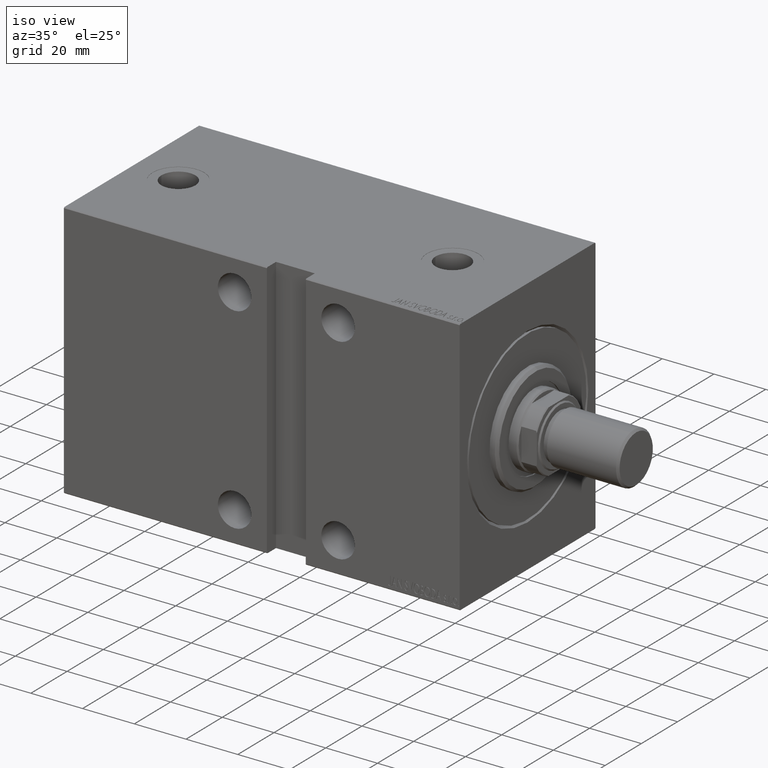
[diagram: clean part render]
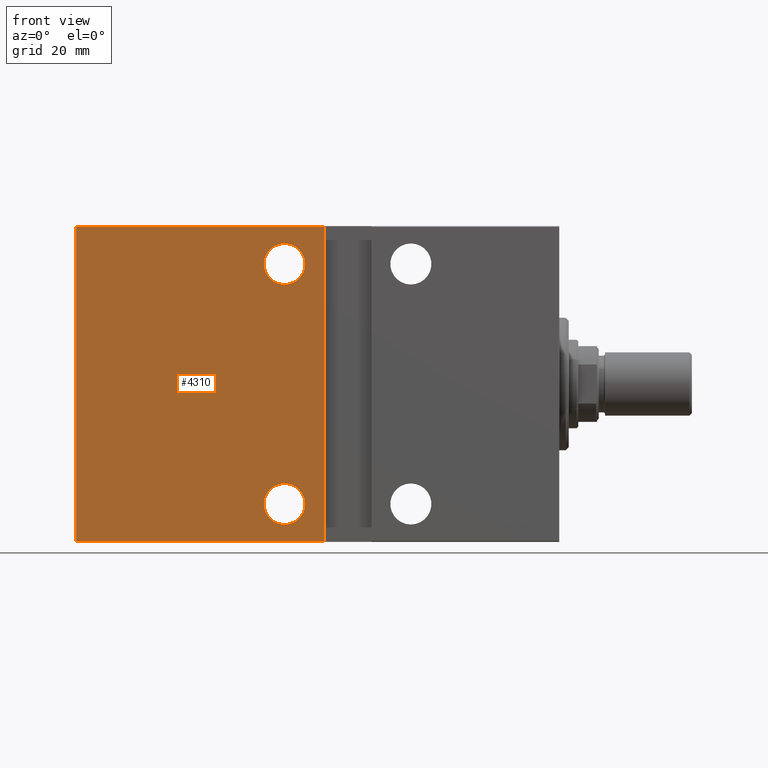
[diagram: tour spotlight — one face highlighted and labeled with its STEP entity id]
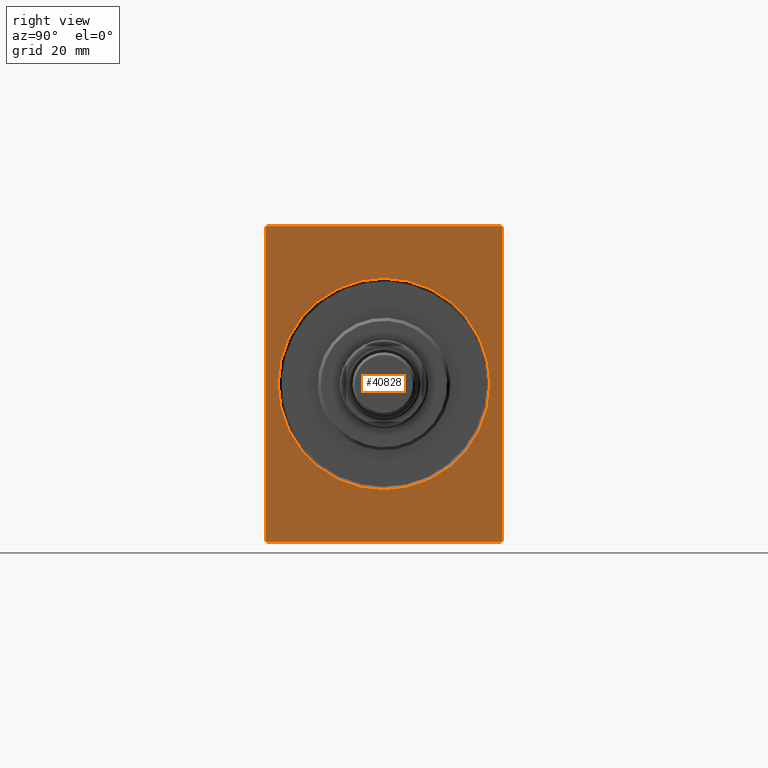
[diagram: tour spotlight — one face highlighted and labeled with its STEP entity id]
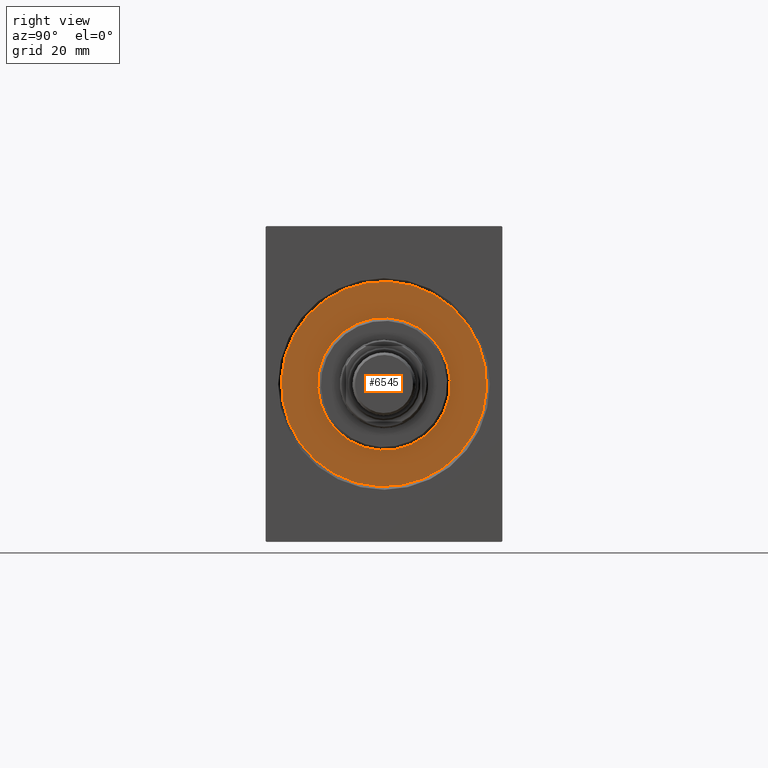
[diagram: tour spotlight — one face highlighted and labeled with its STEP entity id]
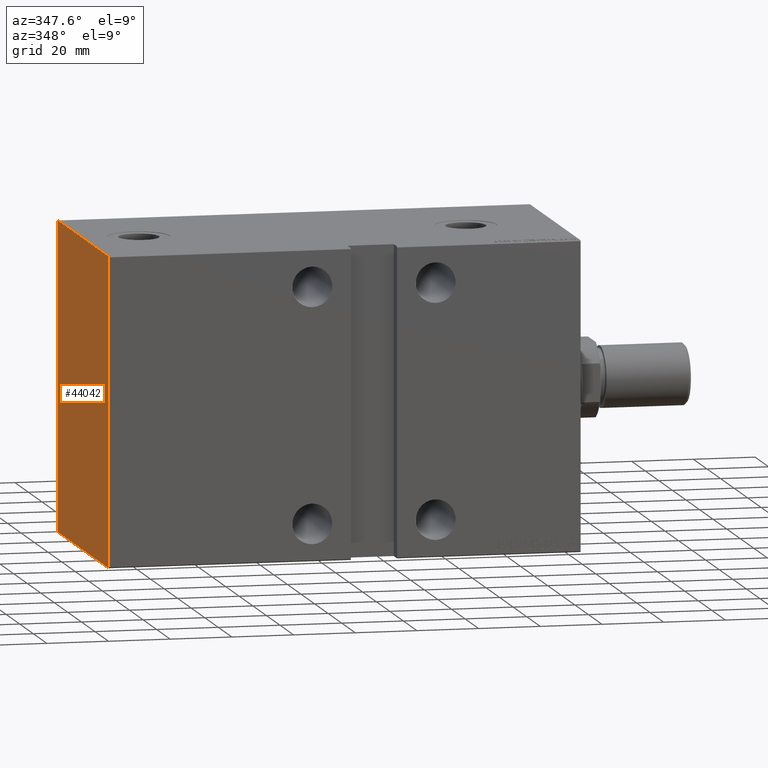
[diagram: tour spotlight — one face highlighted and labeled with its STEP entity id]
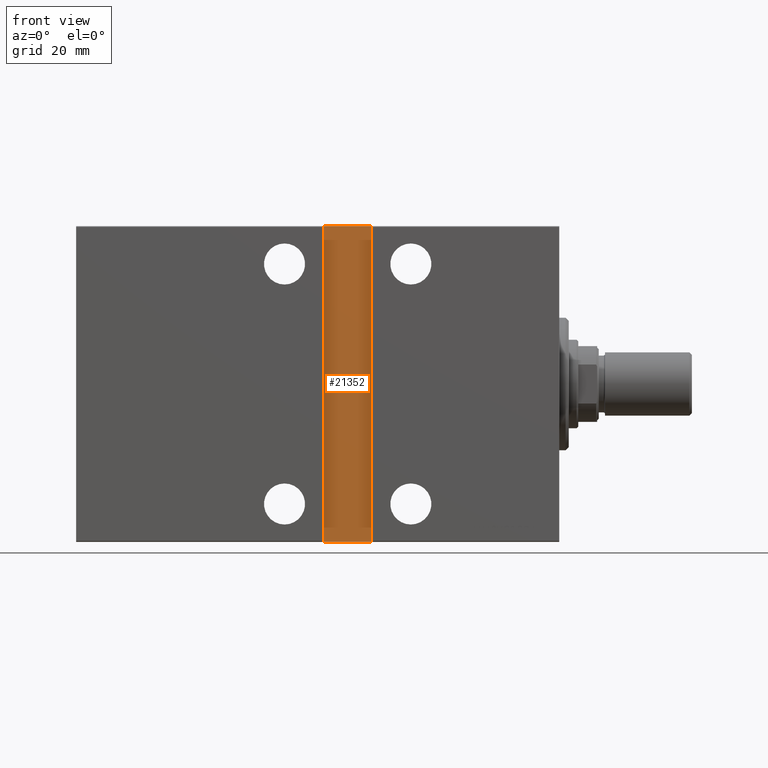
[diagram: tour spotlight — one face highlighted and labeled with its STEP entity id]
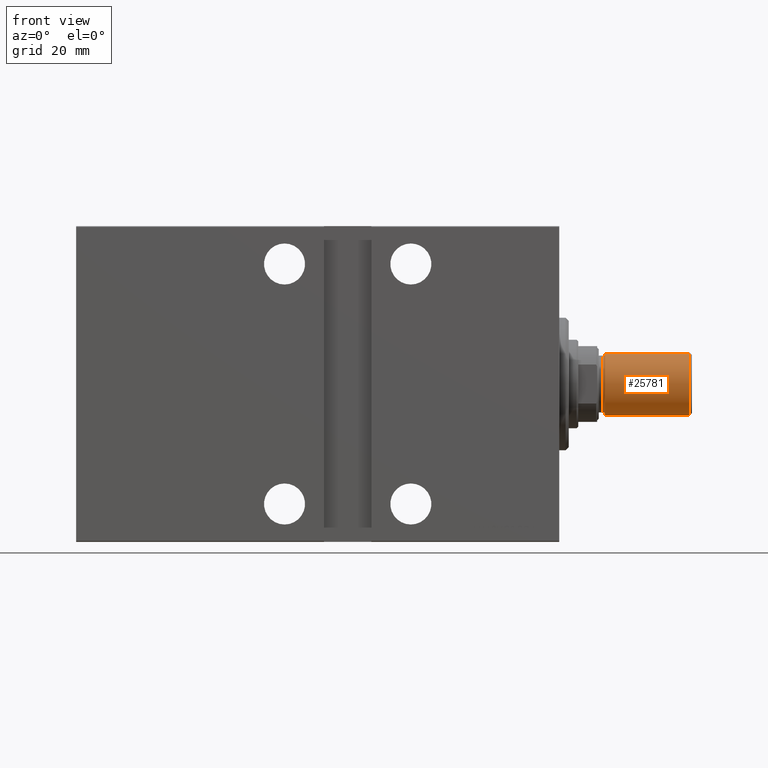
[diagram: tour spotlight — one face highlighted and labeled with its STEP entity id]
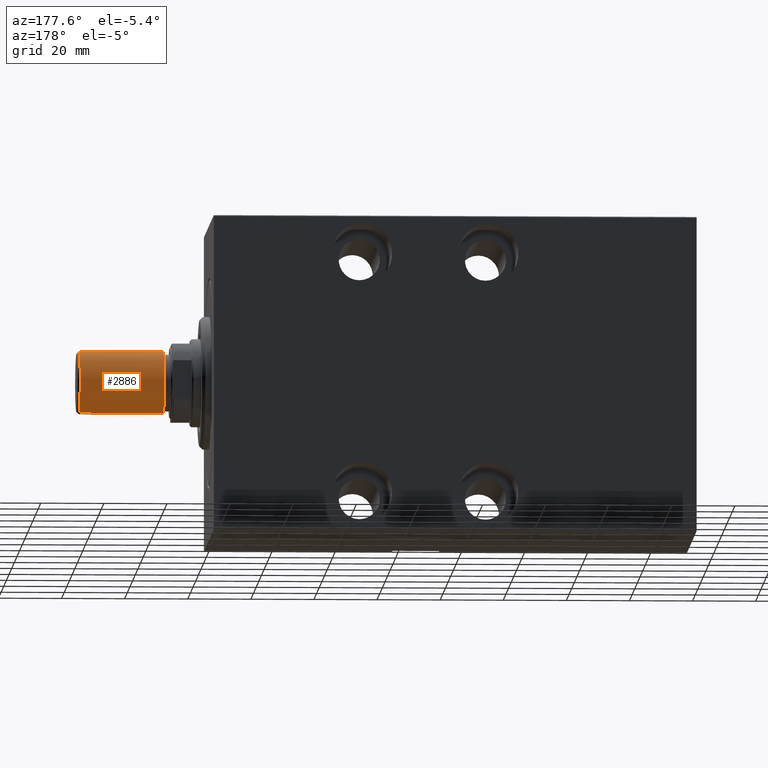
[diagram: tour spotlight — one face highlighted and labeled with its STEP entity id]
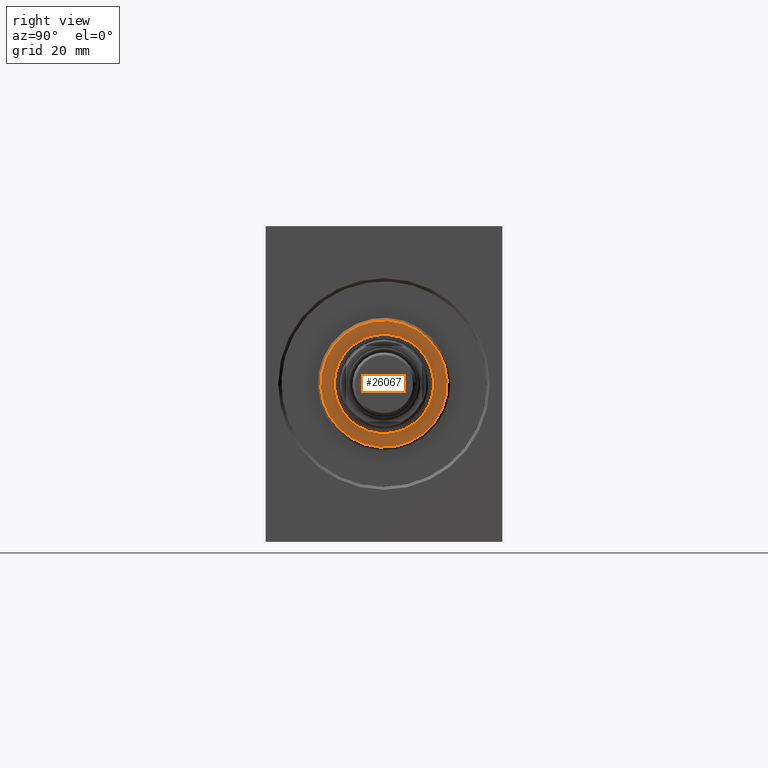
[diagram: tour spotlight — one face highlighted and labeled with its STEP entity id]
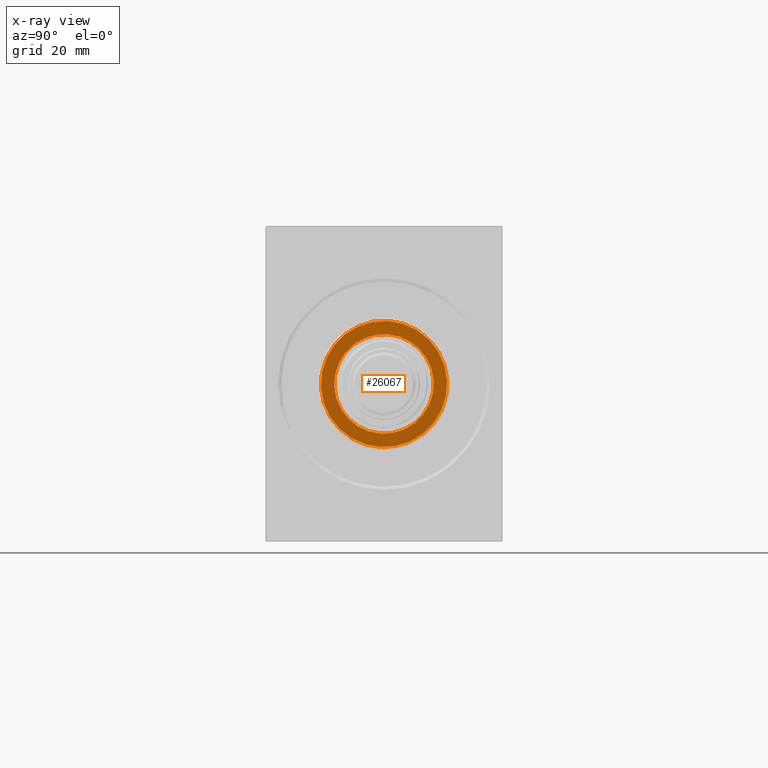
[diagram: x-ray of the same camera — body ghosted, this tour face saturated]
A machine part: a face-by-face anatomy tour. The part has 908 B-rep faces; the first image is the clean iso view, then the 8 largest visible faces are spotlighted one at a time (largest first), each with its STEP entity span.

Face 1 — front view, entity #4310. In plain terms, the highlighted planar face has unit normal (-0, 1, -0).
Definition (entity closure, byte-faithful):
#691 = EDGE_CURVE ( 'NONE', #17377, #16325, #4488, .T. ) ;
#894 = AXIS2_PLACEMENT_3D ( 'NONE', #35437, #18615, #36104 ) ;
#1338 = VECTOR ( 'NONE', #42845, 1000.000000000000000 ) ;
#1899 = CIRCLE ( 'NONE', #19085, 6.500000000000005329 ) ;
#2240 = FACE_BOUND ( 'NONE', #41374, .T. ) ;
#2315 = VECTOR ( 'NONE', #43934, 1000.000000000000000 ) ;
#2344 = AXIS2_PLACEMENT_3D ( 'NONE', #27667, #24299, #23405 ) ;
#4310 = ADVANCED_FACE ( 'NONE', ( #5607, #2240, #43047 ), #19285, .F. ) ;
#4488 = CIRCLE ( 'NONE', #2344, 6.500000000000005329 ) ;
#4959 = LINE ( 'NONE', #8087, #1338 ) ;
#5607 = FACE_BOUND ( 'NONE', #14045, .T. ) ;
#8087 = CARTESIAN_POINT ( 'NONE',  ( 153.0000000000000000, 37.50000000000002132, -49.69999999999998153 ) ) ;
#8532 = CARTESIAN_POINT ( 'NONE',  ( 87.00000000000000000, 37.50000000000004263, 38.00000000000000711 ) ) ;
#8990 = CARTESIAN_POINT ( 'NONE',  ( 87.00000000000000000, 37.50000000000004263, -37.99999999999999289 ) ) ;
#10459 = AXIS2_PLACEMENT_3D ( 'NONE', #8532, #28938, #15478 ) ;
#11300 = ORIENTED_EDGE ( 'NONE', *, *, #31099, .F. ) ;
#13216 = CARTESIAN_POINT ( 'NONE',  ( 153.0000000000000000, 37.50000000000000711, 49.70000000000003837 ) ) ;
#14045 = EDGE_LOOP ( 'NONE', ( #25239, #36959 ) ) ;
#15215 = CARTESIAN_POINT ( 'NONE',  ( 87.00000000000000000, 37.50000000000004263, -31.49999999999998579 ) ) ;
#15336 = CARTESIAN_POINT ( 'NONE',  ( 87.00000000000000000, 37.50000000000004263, 44.50000000000001421 ) ) ;
#15478 = DIRECTION ( 'NONE',  ( 0.000000000000000000, 0.000000000000000000, 1.000000000000000000 ) ) ;
#15718 = VERTEX_POINT ( 'NONE', #25126 ) ;
#16100 = EDGE_CURVE ( 'NONE', #15718, #34473, #34073, .T. ) ;
#16122 = EDGE_CURVE ( 'NONE', #28960, #34473, #20632, .T. ) ;
#16325 = VERTEX_POINT ( 'NONE', #18784 ) ;
#16941 = VECTOR ( 'NONE', #22377, 1000.000000000000000 ) ;
#17377 = VERTEX_POINT ( 'NONE', #15336 ) ;
#18408 = AXIS2_PLACEMENT_3D ( 'NONE', #25472, #36443, #42727 ) ;
#18615 = DIRECTION ( 'NONE',  ( 0.000000000000000000, -1.000000000000000000, -1.387778780781445676E-16 ) ) ;
#18784 = CARTESIAN_POINT ( 'NONE',  ( 87.00000000000000000, 37.50000000000004263, 31.50000000000000000 ) ) ;
#19085 = AXIS2_PLACEMENT_3D ( 'NONE', #8990, #43726, #40145 ) ;
#19285 = PLANE ( 'NONE',  #894 ) ;
#20197 = VERTEX_POINT ( 'NONE', #26917 ) ;
#20632 = LINE ( 'NONE', #30251, #2315 ) ;
#21883 = ORIENTED_EDGE ( 'NONE', *, *, #37525, .T. ) ;
#22377 = DIRECTION ( 'NONE',  ( -1.387778780781445676E-16, 0.000000000000000000, -1.000000000000000000 ) ) ;
#23405 = DIRECTION ( 'NONE',  ( 0.000000000000000000, 0.000000000000000000, 1.000000000000000000 ) ) ;
#24158 = EDGE_CURVE ( 'NONE', #16325, #17377, #37655, .T. ) ;
#24299 = DIRECTION ( 'NONE',  ( 0.000000000000000000, 1.000000000000000000, 0.000000000000000000 ) ) ;
#24498 = EDGE_LOOP ( 'NONE', ( #30056, #21883, #11300, #36584 ) ) ;
#25126 = CARTESIAN_POINT ( 'NONE',  ( 74.50000000000002842, 37.50000000000001421, 49.70000000000003837 ) ) ;
#25239 = ORIENTED_EDGE ( 'NONE', *, *, #31862, .F. ) ;
#25472 = CARTESIAN_POINT ( 'NONE',  ( 87.00000000000000000, 37.50000000000004263, -37.99999999999999289 ) ) ;
#25531 = CARTESIAN_POINT ( 'NONE',  ( 74.50000000000002842, 37.50000000000001421, 50.00000000000000000 ) ) ;
#26917 = CARTESIAN_POINT ( 'NONE',  ( 87.00000000000000000, 37.50000000000004263, -44.50000000000000000 ) ) ;
#27667 = CARTESIAN_POINT ( 'NONE',  ( 87.00000000000000000, 37.50000000000004263, 38.00000000000000711 ) ) ;
#28392 = CARTESIAN_POINT ( 'NONE',  ( 74.50000000000001421, 37.50000000000001421, -49.69999999999998153 ) ) ;
#28579 = EDGE_CURVE ( 'NONE', #20197, #32768, #32015, .T. ) ;
#28938 = DIRECTION ( 'NONE',  ( 0.000000000000000000, 1.000000000000000000, 0.000000000000000000 ) ) ;
#28960 = VERTEX_POINT ( 'NONE', #41265 ) ;
#30037 = DIRECTION ( 'NONE',  ( 1.000000000000000000, 0.000000000000000000, 0.000000000000000000 ) ) ;
#30056 = ORIENTED_EDGE ( 'NONE', *, *, #16122, .F. ) ;
#30251 = CARTESIAN_POINT ( 'NONE',  ( 153.0000000000000000, 37.50000000000002132, -50.00000000000000000 ) ) ;
#31099 = EDGE_CURVE ( 'NONE', #15718, #40153, #32695, .T. ) ;
#31862 = EDGE_CURVE ( 'NONE', #32768, #20197, #1899, .T. ) ;
#32015 = CIRCLE ( 'NONE', #18408, 6.500000000000005329 ) ;
#32550 = ORIENTED_EDGE ( 'NONE', *, *, #691, .F. ) ;
#32695 = LINE ( 'NONE', #25531, #16941 ) ;
#32768 = VERTEX_POINT ( 'NONE', #15215 ) ;
#33097 = VECTOR ( 'NONE', #30037, 1000.000000000000000 ) ;
#34073 = LINE ( 'NONE', #13216, #33097 ) ;
#34473 = VERTEX_POINT ( 'NONE', #34827 ) ;
#34827 = CARTESIAN_POINT ( 'NONE',  ( 153.0000000000000000, 37.50000000000000711, 49.70000000000003837 ) ) ;
#35437 = CARTESIAN_POINT ( 'NONE',  ( 153.0000000000000000, 37.50000000000002132, -50.00000000000000000 ) ) ;
#36104 = DIRECTION ( 'NONE',  ( 0.000000000000000000, 1.387778780781445676E-16, -1.000000000000000000 ) ) ;
#36443 = DIRECTION ( 'NONE',  ( 0.000000000000000000, 1.000000000000000000, 0.000000000000000000 ) ) ;
#36584 = ORIENTED_EDGE ( 'NONE', *, *, #16100, .T. ) ;
#36787 = ORIENTED_EDGE ( 'NONE', *, *, #24158, .F. ) ;
#36959 = ORIENTED_EDGE ( 'NONE', *, *, #28579, .F. ) ;
#37525 = EDGE_CURVE ( 'NONE', #28960, #40153, #4959, .T. ) ;
#37655 = CIRCLE ( 'NONE', #10459, 6.500000000000005329 ) ;
#40145 = DIRECTION ( 'NONE',  ( 0.000000000000000000, 0.000000000000000000, 1.000000000000000000 ) ) ;
#40153 = VERTEX_POINT ( 'NONE', #28392 ) ;
#41265 = CARTESIAN_POINT ( 'NONE',  ( 153.0000000000000000, 37.50000000000002132, -49.69999999999998153 ) ) ;
#41374 = EDGE_LOOP ( 'NONE', ( #32550, #36787 ) ) ;
#42727 = DIRECTION ( 'NONE',  ( 0.000000000000000000, 0.000000000000000000, 1.000000000000000000 ) ) ;
#42845 = DIRECTION ( 'NONE',  ( -1.000000000000000000, 0.000000000000000000, 0.000000000000000000 ) ) ;
#43047 = FACE_OUTER_BOUND ( 'NONE', #24498, .T. ) ;
#43726 = DIRECTION ( 'NONE',  ( 0.000000000000000000, 1.000000000000000000, 0.000000000000000000 ) ) ;
#43934 = DIRECTION ( 'NONE',  ( 0.000000000000000000, -1.387778780781445676E-16, 1.000000000000000000 ) ) ;

Face 2 — right view, entity #40828. In plain terms, the highlighted planar face has unit normal (-1, -0, 0).
Definition (entity closure, byte-faithful):
#567 = DIRECTION ( 'NONE',  ( 1.000000000000000000, 0.000000000000000000, 0.000000000000000000 ) ) ;
#573 = DIRECTION ( 'NONE',  ( 0.000000000000000000, -0.7071067811865474617, -0.7071067811865474617 ) ) ;
#1000 = VECTOR ( 'NONE', #33949, 1000.000000000000000 ) ;
#3169 = VERTEX_POINT ( 'NONE', #9233 ) ;
#3211 = VERTEX_POINT ( 'NONE', #23581 ) ;
#4368 = CARTESIAN_POINT ( 'NONE',  ( 0.000000000000000000, 0.000000000000000000, 0.000000000000000000 ) ) ;
#4693 = ORIENTED_EDGE ( 'NONE', *, *, #17292, .T. ) ;
#5036 = EDGE_CURVE ( 'NONE', #44056, #29942, #33124, .T. ) ;
#5929 = AXIS2_PLACEMENT_3D ( 'NONE', #4368, #567, #40934 ) ;
#6331 = DIRECTION ( 'NONE',  ( 0.000000000000000000, 0.000000000000000000, -1.000000000000000000 ) ) ;
#6409 = VERTEX_POINT ( 'NONE', #7742 ) ;
#6434 = AXIS2_PLACEMENT_3D ( 'NONE', #30496, #44172, #27360 ) ;
#6450 = ORIENTED_EDGE ( 'NONE', *, *, #43239, .F. ) ;
#7367 = CARTESIAN_POINT ( 'NONE',  ( 0.000000000000000000, -37.19999999999996732, 50.00000000000000000 ) ) ;
#7742 = CARTESIAN_POINT ( 'NONE',  ( 0.000000000000000000, 37.50000000000002132, -49.69999999999998153 ) ) ;
#8025 = LINE ( 'NONE', #18349, #22568 ) ;
#8481 = DIRECTION ( 'NONE',  ( -0.000000000000000000, 0.7071067811865474617, 0.7071067811865474617 ) ) ;
#9233 = CARTESIAN_POINT ( 'NONE',  ( 0.000000000000000000, -37.49999999999999289, 49.69999999999998153 ) ) ;
#9262 = VERTEX_POINT ( 'NONE', #37418 ) ;
#10451 = EDGE_CURVE ( 'NONE', #3169, #13291, #8025, .T. ) ;
#10879 = LINE ( 'NONE', #37799, #13100 ) ;
#11059 = CARTESIAN_POINT ( 'NONE',  ( 0.000000000000000000, 37.50000000000002132, -50.00000000000000000 ) ) ;
#13100 = VECTOR ( 'NONE', #573, 1000.000000000000114 ) ;
#13291 = VERTEX_POINT ( 'NONE', #7367 ) ;
#13705 = CARTESIAN_POINT ( 'NONE',  ( 0.000000000000000000, -37.49999999999999289, 50.00000000000000000 ) ) ;
#14138 = VECTOR ( 'NONE', #35307, 1000.000000000000114 ) ;
#15271 = VECTOR ( 'NONE', #26113, 999.9999999999998863 ) ;
#15805 = VERTEX_POINT ( 'NONE', #28496 ) ;
#16220 = ORIENTED_EDGE ( 'NONE', *, *, #16518, .T. ) ;
#16397 = EDGE_CURVE ( 'NONE', #9262, #13291, #40750, .T. ) ;
#16518 = EDGE_CURVE ( 'NONE', #29942, #44056, #38173, .T. ) ;
#16540 = VERTEX_POINT ( 'NONE', #38444 ) ;
#16812 = FACE_OUTER_BOUND ( 'NONE', #31013, .T. ) ;
#17292 = EDGE_CURVE ( 'NONE', #6409, #3211, #10879, .T. ) ;
#18130 = CARTESIAN_POINT ( 'NONE',  ( 0.000000000000000000, 37.50000000000000711, 49.70000000000003837 ) ) ;
#18215 = EDGE_CURVE ( 'NONE', #9262, #20376, #25673, .T. ) ;
#18349 = CARTESIAN_POINT ( 'NONE',  ( 0.000000000000000000, -37.49999999999999289, 49.69999999999998153 ) ) ;
#19052 = EDGE_CURVE ( 'NONE', #6409, #20376, #37762, .T. ) ;
#19306 = ORIENTED_EDGE ( 'NONE', *, *, #5036, .T. ) ;
#20236 = CARTESIAN_POINT ( 'NONE',  ( 0.000000000000000000, 0.000000000000000000, 0.000000000000000000 ) ) ;
#20376 = VERTEX_POINT ( 'NONE', #18130 ) ;
#20439 = LINE ( 'NONE', #13705, #29392 ) ;
#22077 = CARTESIAN_POINT ( 'NONE',  ( 0.000000000000000000, -37.19999999999996732, -50.00000000000000000 ) ) ;
#22224 = LINE ( 'NONE', #29176, #23410 ) ;
#22568 = VECTOR ( 'NONE', #8481, 1000.000000000000114 ) ;
#23410 = VECTOR ( 'NONE', #35891, 1000.000000000000000 ) ;
#23581 = CARTESIAN_POINT ( 'NONE',  ( 0.000000000000000000, 37.19999999999999574, -50.00000000000000000 ) ) ;
#24120 = ORIENTED_EDGE ( 'NONE', *, *, #18215, .T. ) ;
#24575 = VECTOR ( 'NONE', #36936, 1000.000000000000000 ) ;
#25288 = AXIS2_PLACEMENT_3D ( 'NONE', #20236, #33901, #6331 ) ;
#25673 = LINE ( 'NONE', #35972, #15271 ) ;
#25886 = LINE ( 'NONE', #22077, #14138 ) ;
#26113 = DIRECTION ( 'NONE',  ( -0.000000000000000000, 0.7071067811865802133, -0.7071067811865149322 ) ) ;
#26279 = ORIENTED_EDGE ( 'NONE', *, *, #10451, .T. ) ;
#26490 = DIRECTION ( 'NONE',  ( 0.000000000000000000, 0.000000000000000000, -1.000000000000000000 ) ) ;
#27076 = CARTESIAN_POINT ( 'NONE',  ( 0.000000000000000000, 37.50000000000000711, 50.00000000000000000 ) ) ;
#27360 = DIRECTION ( 'NONE',  ( 0.000000000000000000, 0.000000000000000000, -1.000000000000000000 ) ) ;
#28496 = CARTESIAN_POINT ( 'NONE',  ( 0.000000000000000000, -37.49999999999999289, -49.69999999999998153 ) ) ;
#29176 = CARTESIAN_POINT ( 'NONE',  ( 0.000000000000000000, -37.49999999999999289, -50.00000000000000000 ) ) ;
#29392 = VECTOR ( 'NONE', #26490, 1000.000000000000000 ) ;
#29942 = VERTEX_POINT ( 'NONE', #43324 ) ;
#30496 = CARTESIAN_POINT ( 'NONE',  ( 0.000000000000000000, 0.000000000000000000, 0.000000000000000000 ) ) ;
#31013 = EDGE_LOOP ( 'NONE', ( #38337, #24120, #36131, #4693, #41635, #34273, #6450, #26279 ) ) ;
#31970 = EDGE_CURVE ( 'NONE', #16540, #3211, #22224, .T. ) ;
#33124 = CIRCLE ( 'NONE', #25288, 33.50000000000000000 ) ;
#33901 = DIRECTION ( 'NONE',  ( 1.000000000000000000, 0.000000000000000000, 0.000000000000000000 ) ) ;
#33949 = DIRECTION ( 'NONE',  ( 0.000000000000000000, -1.387778780781445676E-16, 1.000000000000000000 ) ) ;
#34260 = EDGE_CURVE ( 'NONE', #16540, #15805, #25886, .T. ) ;
#34273 = ORIENTED_EDGE ( 'NONE', *, *, #34260, .T. ) ;
#35307 = DIRECTION ( 'NONE',  ( -0.000000000000000000, -0.7071067811865474617, 0.7071067811865474617 ) ) ;
#35891 = DIRECTION ( 'NONE',  ( 0.000000000000000000, 1.000000000000000000, 0.000000000000000000 ) ) ;
#35972 = CARTESIAN_POINT ( 'NONE',  ( 0.000000000000000000, 37.20000000000000995, 50.00000000000000000 ) ) ;
#36131 = ORIENTED_EDGE ( 'NONE', *, *, #19052, .F. ) ;
#36921 = CARTESIAN_POINT ( 'NONE',  ( 0.000000000000000000, 0.000000000000000000, 33.50000000000000000 ) ) ;
#36936 = DIRECTION ( 'NONE',  ( 0.000000000000000000, -1.000000000000000000, 0.000000000000000000 ) ) ;
#37418 = CARTESIAN_POINT ( 'NONE',  ( 0.000000000000000000, 37.20000000000000995, 50.00000000000000000 ) ) ;
#37762 = LINE ( 'NONE', #11059, #1000 ) ;
#37799 = CARTESIAN_POINT ( 'NONE',  ( 0.000000000000000000, 37.50000000000002132, -49.69999999999998153 ) ) ;
#38173 = CIRCLE ( 'NONE', #5929, 33.50000000000000000 ) ;
#38337 = ORIENTED_EDGE ( 'NONE', *, *, #16397, .F. ) ;
#38444 = CARTESIAN_POINT ( 'NONE',  ( 0.000000000000000000, -37.19999999999996732, -50.00000000000000000 ) ) ;
#39195 = EDGE_LOOP ( 'NONE', ( #19306, #16220 ) ) ;
#40588 = FACE_BOUND ( 'NONE', #39195, .T. ) ;
#40750 = LINE ( 'NONE', #27076, #24575 ) ;
#40828 = ADVANCED_FACE ( 'NONE', ( #40588, #16812 ), #41847, .F. ) ;
#40934 = DIRECTION ( 'NONE',  ( 0.000000000000000000, 0.000000000000000000, -1.000000000000000000 ) ) ;
#41635 = ORIENTED_EDGE ( 'NONE', *, *, #31970, .F. ) ;
#41847 = PLANE ( 'NONE',  #6434 ) ;
#43239 = EDGE_CURVE ( 'NONE', #3169, #15805, #20439, .T. ) ;
#43324 = CARTESIAN_POINT ( 'NONE',  ( 0.000000000000000000, 4.102566777143633774E-15, -33.50000000000000000 ) ) ;
#44056 = VERTEX_POINT ( 'NONE', #36921 ) ;
#44172 = DIRECTION ( 'NONE',  ( 1.000000000000000000, 0.000000000000000000, 0.000000000000000000 ) ) ;

Face 3 — right view, entity #6545. In plain terms, the highlighted planar face has unit normal (-1, 0, 0).
Definition (entity closure, byte-faithful):
#690 = PLANE ( 'NONE',  #23175 ) ;
#1193 = DIRECTION ( 'NONE',  ( 0.000000000000000000, 0.000000000000000000, 1.000000000000000000 ) ) ;
#1261 = DIRECTION ( 'NONE',  ( 1.000000000000000000, -0.000000000000000000, 0.000000000000000000 ) ) ;
#3099 = ORIENTED_EDGE ( 'NONE', *, *, #27521, .F. ) ;
#3915 = DIRECTION ( 'NONE',  ( -1.000000000000000000, 0.000000000000000000, 0.000000000000000000 ) ) ;
#3981 = DIRECTION ( 'NONE',  ( 0.000000000000000000, 0.000000000000000000, -1.000000000000000000 ) ) ;
#4529 = ORIENTED_EDGE ( 'NONE', *, *, #9642, .F. ) ;
#5014 = VERTEX_POINT ( 'NONE', #13278 ) ;
#6239 = VERTEX_POINT ( 'NONE', #20332 ) ;
#6545 = ADVANCED_FACE ( 'NONE', ( #21108, #21322 ), #690, .F. ) ;
#7264 = DIRECTION ( 'NONE',  ( 0.000000000000000000, 0.000000000000000000, -1.000000000000000000 ) ) ;
#7345 = CIRCLE ( 'NONE', #13064, 21.00000000000000000 ) ;
#7630 = AXIS2_PLACEMENT_3D ( 'NONE', #17140, #3915, #13557 ) ;
#9642 = EDGE_CURVE ( 'NONE', #5014, #39108, #29674, .T. ) ;
#11222 = CARTESIAN_POINT ( 'NONE',  ( 0.000000000000000000, 0.000000000000000000, 0.000000000000000000 ) ) ;
#11570 = CARTESIAN_POINT ( 'NONE',  ( 0.000000000000000000, 0.000000000000000000, 0.000000000000000000 ) ) ;
#12886 = ORIENTED_EDGE ( 'NONE', *, *, #41968, .F. ) ;
#13064 = AXIS2_PLACEMENT_3D ( 'NONE', #41134, #33950, #7264 ) ;
#13278 = CARTESIAN_POINT ( 'NONE',  ( 0.000000000000000000, 3.980102097228898626E-15, 32.50000000000000000 ) ) ;
#13557 = DIRECTION ( 'NONE',  ( 0.000000000000000000, 0.000000000000000000, 1.000000000000000000 ) ) ;
#14377 = AXIS2_PLACEMENT_3D ( 'NONE', #11570, #1261, #3981 ) ;
#15360 = AXIS2_PLACEMENT_3D ( 'NONE', #35492, #28992, #1193 ) ;
#15412 = EDGE_CURVE ( 'NONE', #6239, #16880, #7345, .T. ) ;
#16880 = VERTEX_POINT ( 'NONE', #44356 ) ;
#17140 = CARTESIAN_POINT ( 'NONE',  ( 0.000000000000000000, 0.000000000000000000, 0.000000000000000000 ) ) ;
#19367 = CIRCLE ( 'NONE', #14377, 21.00000000000000000 ) ;
#19799 = CIRCLE ( 'NONE', #7630, 32.50000000000000000 ) ;
#20332 = CARTESIAN_POINT ( 'NONE',  ( 0.000000000000000000, 0.000000000000000000, 21.00000000000000000 ) ) ;
#21108 = FACE_BOUND ( 'NONE', #34101, .T. ) ;
#21322 = FACE_OUTER_BOUND ( 'NONE', #36221, .T. ) ;
#23175 = AXIS2_PLACEMENT_3D ( 'NONE', #11222, #24260, #35428 ) ;
#24260 = DIRECTION ( 'NONE',  ( -1.000000000000000000, 0.000000000000000000, 0.000000000000000000 ) ) ;
#27521 = EDGE_CURVE ( 'NONE', #39108, #5014, #19799, .T. ) ;
#28992 = DIRECTION ( 'NONE',  ( -1.000000000000000000, 0.000000000000000000, 0.000000000000000000 ) ) ;
#29674 = CIRCLE ( 'NONE', #15360, 32.50000000000000000 ) ;
#32632 = CARTESIAN_POINT ( 'NONE',  ( 0.000000000000000000, 0.000000000000000000, -32.50000000000000000 ) ) ;
#33950 = DIRECTION ( 'NONE',  ( 1.000000000000000000, -0.000000000000000000, 0.000000000000000000 ) ) ;
#34101 = EDGE_LOOP ( 'NONE', ( #43459, #12886 ) ) ;
#35428 = DIRECTION ( 'NONE',  ( 0.000000000000000000, 0.000000000000000000, 1.000000000000000000 ) ) ;
#35492 = CARTESIAN_POINT ( 'NONE',  ( 0.000000000000000000, 0.000000000000000000, 0.000000000000000000 ) ) ;
#36221 = EDGE_LOOP ( 'NONE', ( #3099, #4529 ) ) ;
#39108 = VERTEX_POINT ( 'NONE', #32632 ) ;
#41134 = CARTESIAN_POINT ( 'NONE',  ( 0.000000000000000000, 0.000000000000000000, 0.000000000000000000 ) ) ;
#41968 = EDGE_CURVE ( 'NONE', #16880, #6239, #19367, .T. ) ;
#43459 = ORIENTED_EDGE ( 'NONE', *, *, #15412, .F. ) ;
#44356 = CARTESIAN_POINT ( 'NONE',  ( 0.000000000000000000, 2.571758278209441661E-15, -21.00000000000000000 ) ) ;

Face 4 — auxiliary view, entity #44042. In plain terms, the highlighted planar face has unit normal (-1, -0, 0).
Definition (entity closure, byte-faithful):
#1028 = ORIENTED_EDGE ( 'NONE', *, *, #36885, .T. ) ;
#1132 = CARTESIAN_POINT ( 'NONE',  ( 153.0000000000000000, -37.49999999999999289, -49.69999999999998153 ) ) ;
#1642 = VECTOR ( 'NONE', #29299, 1000.000000000000000 ) ;
#2146 = VECTOR ( 'NONE', #28997, 1000.000000000000000 ) ;
#2315 = VECTOR ( 'NONE', #43934, 1000.000000000000000 ) ;
#3138 = DIRECTION ( 'NONE',  ( 0.000000000000000000, -0.7071067811865474617, -0.7071067811865474617 ) ) ;
#4745 = ORIENTED_EDGE ( 'NONE', *, *, #16122, .T. ) ;
#6389 = DIRECTION ( 'NONE',  ( -0.000000000000000000, 0.7071067811865474617, 0.7071067811865474617 ) ) ;
#7051 = VECTOR ( 'NONE', #27630, 999.9999999999998863 ) ;
#7741 = LINE ( 'NONE', #42042, #42376 ) ;
#8674 = AXIS2_PLACEMENT_3D ( 'NONE', #19000, #32673, #40278 ) ;
#9120 = PLANE ( 'NONE',  #8674 ) ;
#10365 = VECTOR ( 'NONE', #6389, 1000.000000000000114 ) ;
#10756 = LINE ( 'NONE', #34082, #42144 ) ;
#11322 = DIRECTION ( 'NONE',  ( 0.000000000000000000, -1.000000000000000000, 0.000000000000000000 ) ) ;
#13074 = ORIENTED_EDGE ( 'NONE', *, *, #39593, .T. ) ;
#13381 = CARTESIAN_POINT ( 'NONE',  ( 153.0000000000000000, -37.19999999999996732, -50.00000000000000000 ) ) ;
#14461 = EDGE_CURVE ( 'NONE', #17766, #28678, #7741, .T. ) ;
#15313 = CARTESIAN_POINT ( 'NONE',  ( 153.0000000000000000, -37.49999999999999289, 50.00000000000000000 ) ) ;
#16122 = EDGE_CURVE ( 'NONE', #28960, #34473, #20632, .T. ) ;
#17093 = EDGE_CURVE ( 'NONE', #41750, #19757, #18754, .T. ) ;
#17766 = VERTEX_POINT ( 'NONE', #21792 ) ;
#17971 = VERTEX_POINT ( 'NONE', #25501 ) ;
#18754 = LINE ( 'NONE', #25932, #1642 ) ;
#19000 = CARTESIAN_POINT ( 'NONE',  ( 153.0000000000000000, 0.000000000000000000, 0.000000000000000000 ) ) ;
#19757 = VERTEX_POINT ( 'NONE', #26184 ) ;
#20347 = ORIENTED_EDGE ( 'NONE', *, *, #17093, .T. ) ;
#20593 = ORIENTED_EDGE ( 'NONE', *, *, #35841, .T. ) ;
#20632 = LINE ( 'NONE', #30251, #2315 ) ;
#20798 = ORIENTED_EDGE ( 'NONE', *, *, #40556, .T. ) ;
#20889 = EDGE_CURVE ( 'NONE', #19757, #28960, #27479, .T. ) ;
#21449 = VECTOR ( 'NONE', #37878, 1000.000000000000114 ) ;
#21792 = CARTESIAN_POINT ( 'NONE',  ( 153.0000000000000000, 37.20000000000000995, 50.00000000000000000 ) ) ;
#22397 = ORIENTED_EDGE ( 'NONE', *, *, #20889, .T. ) ;
#24265 = CARTESIAN_POINT ( 'NONE',  ( 153.0000000000000000, 43.59999999999828901, 43.60000000000231779 ) ) ;
#24863 = CARTESIAN_POINT ( 'NONE',  ( 153.0000000000000000, -43.59999999999998721, -43.59999999999998721 ) ) ;
#25501 = CARTESIAN_POINT ( 'NONE',  ( 153.0000000000000000, -37.49999999999999289, 49.69999999999998153 ) ) ;
#25932 = CARTESIAN_POINT ( 'NONE',  ( 153.0000000000000000, -37.49999999999999289, -50.00000000000000000 ) ) ;
#26184 = CARTESIAN_POINT ( 'NONE',  ( 153.0000000000000000, 37.19999999999999574, -50.00000000000000000 ) ) ;
#27089 = EDGE_LOOP ( 'NONE', ( #20347, #22397, #4745, #20593, #37843, #1028, #20798, #13074 ) ) ;
#27096 = VERTEX_POINT ( 'NONE', #1132 ) ;
#27183 = LINE ( 'NONE', #24265, #7051 ) ;
#27479 = LINE ( 'NONE', #44057, #10365 ) ;
#27630 = DIRECTION ( 'NONE',  ( -0.000000000000000000, -0.7071067811865802133, 0.7071067811865149322 ) ) ;
#28678 = VERTEX_POINT ( 'NONE', #36887 ) ;
#28960 = VERTEX_POINT ( 'NONE', #41265 ) ;
#28997 = DIRECTION ( 'NONE',  ( 0.000000000000000000, 0.000000000000000000, -1.000000000000000000 ) ) ;
#29299 = DIRECTION ( 'NONE',  ( 0.000000000000000000, 1.000000000000000000, 0.000000000000000000 ) ) ;
#29752 = FACE_OUTER_BOUND ( 'NONE', #27089, .T. ) ;
#30251 = CARTESIAN_POINT ( 'NONE',  ( 153.0000000000000000, 37.50000000000002132, -50.00000000000000000 ) ) ;
#32353 = LINE ( 'NONE', #15313, #2146 ) ;
#32673 = DIRECTION ( 'NONE',  ( 1.000000000000000000, 0.000000000000000000, 0.000000000000000000 ) ) ;
#34082 = CARTESIAN_POINT ( 'NONE',  ( 153.0000000000000000, -43.59999999999998721, 43.59999999999998721 ) ) ;
#34303 = LINE ( 'NONE', #24863, #21449 ) ;
#34473 = VERTEX_POINT ( 'NONE', #34827 ) ;
#34827 = CARTESIAN_POINT ( 'NONE',  ( 153.0000000000000000, 37.50000000000000711, 49.70000000000003837 ) ) ;
#35841 = EDGE_CURVE ( 'NONE', #34473, #17766, #27183, .T. ) ;
#36885 = EDGE_CURVE ( 'NONE', #28678, #17971, #10756, .T. ) ;
#36887 = CARTESIAN_POINT ( 'NONE',  ( 153.0000000000000000, -37.19999999999996732, 50.00000000000000000 ) ) ;
#37843 = ORIENTED_EDGE ( 'NONE', *, *, #14461, .T. ) ;
#37878 = DIRECTION ( 'NONE',  ( -0.000000000000000000, 0.7071067811865474617, -0.7071067811865474617 ) ) ;
#39593 = EDGE_CURVE ( 'NONE', #27096, #41750, #34303, .T. ) ;
#40278 = DIRECTION ( 'NONE',  ( 0.000000000000000000, 0.000000000000000000, -1.000000000000000000 ) ) ;
#40556 = EDGE_CURVE ( 'NONE', #17971, #27096, #32353, .T. ) ;
#41265 = CARTESIAN_POINT ( 'NONE',  ( 153.0000000000000000, 37.50000000000002132, -49.69999999999998153 ) ) ;
#41750 = VERTEX_POINT ( 'NONE', #13381 ) ;
#42042 = CARTESIAN_POINT ( 'NONE',  ( 153.0000000000000000, 37.50000000000000711, 50.00000000000000000 ) ) ;
#42144 = VECTOR ( 'NONE', #3138, 1000.000000000000114 ) ;
#42376 = VECTOR ( 'NONE', #11322, 1000.000000000000000 ) ;
#43934 = DIRECTION ( 'NONE',  ( 0.000000000000000000, -1.387778780781445676E-16, 1.000000000000000000 ) ) ;
#44042 = ADVANCED_FACE ( 'NONE', ( #29752 ), #9120, .T. ) ;
#44057 = CARTESIAN_POINT ( 'NONE',  ( 153.0000000000000000, 43.60000000000000142, -43.60000000000000142 ) ) ;

Face 5 — front view, entity #21352. In plain terms, the highlighted planar face has unit normal (0, -1, -0).
Definition (entity closure, byte-faithful):
#2305 = LINE ( 'NONE', #2747, #44145 ) ;
#2747 = CARTESIAN_POINT ( 'NONE',  ( 59.50000000000000711, 32.50000000000001421, -50.00000000000000000 ) ) ;
#3545 = EDGE_CURVE ( 'NONE', #20028, #34864, #30649, .T. ) ;
#3591 = CARTESIAN_POINT ( 'NONE',  ( 59.50000000000001421, 32.50000000000001421, 50.00000000000000000 ) ) ;
#5362 = VECTOR ( 'NONE', #12321, 1000.000000000000000 ) ;
#5954 = VERTEX_POINT ( 'NONE', #32222 ) ;
#8265 = CARTESIAN_POINT ( 'NONE',  ( 0.000000000000000000, 32.50000000000001421, 0.000000000000000000 ) ) ;
#8711 = DIRECTION ( 'NONE',  ( -0.000000000000000000, 1.000000000000000000, 0.000000000000000000 ) ) ;
#12321 = DIRECTION ( 'NONE',  ( -1.387778780781445676E-16, 0.000000000000000000, -1.000000000000000000 ) ) ;
#13457 = LINE ( 'NONE', #3591, #21390 ) ;
#14797 = CARTESIAN_POINT ( 'NONE',  ( 59.50000000000000711, 32.50000000000001421, -50.00000000000000000 ) ) ;
#15980 = ORIENTED_EDGE ( 'NONE', *, *, #22578, .T. ) ;
#16263 = VERTEX_POINT ( 'NONE', #27804 ) ;
#18579 = DIRECTION ( 'NONE',  ( 0.000000000000000000, -0.000000000000000000, 1.000000000000000000 ) ) ;
#18800 = FACE_OUTER_BOUND ( 'NONE', #35527, .T. ) ;
#20028 = VERTEX_POINT ( 'NONE', #39749 ) ;
#21352 = ADVANCED_FACE ( 'NONE', ( #18800 ), #25312, .T. ) ;
#21390 = VECTOR ( 'NONE', #37661, 1000.000000000000000 ) ;
#22578 = EDGE_CURVE ( 'NONE', #5954, #16263, #29807, .T. ) ;
#24593 = ORIENTED_EDGE ( 'NONE', *, *, #31600, .F. ) ;
#25312 = PLANE ( 'NONE',  #27527 ) ;
#27492 = VECTOR ( 'NONE', #27741, 1000.000000000000000 ) ;
#27527 = AXIS2_PLACEMENT_3D ( 'NONE', #8265, #8711, #18579 ) ;
#27741 = DIRECTION ( 'NONE',  ( -6.938893903907228378E-17, 0.000000000000000000, -1.000000000000000000 ) ) ;
#27804 = CARTESIAN_POINT ( 'NONE',  ( 74.50000000000002842, 32.50000000000001421, -50.00000000000000000 ) ) ;
#29807 = LINE ( 'NONE', #43259, #5362 ) ;
#30419 = CARTESIAN_POINT ( 'NONE',  ( 59.50000000000001421, 32.50000000000001421, 50.00000000000000000 ) ) ;
#30649 = LINE ( 'NONE', #30419, #27492 ) ;
#31600 = EDGE_CURVE ( 'NONE', #34864, #16263, #2305, .T. ) ;
#32222 = CARTESIAN_POINT ( 'NONE',  ( 74.50000000000002842, 32.50000000000001421, 50.00000000000000000 ) ) ;
#34090 = ORIENTED_EDGE ( 'NONE', *, *, #36917, .T. ) ;
#34864 = VERTEX_POINT ( 'NONE', #14797 ) ;
#35527 = EDGE_LOOP ( 'NONE', ( #24593, #41276, #34090, #15980 ) ) ;
#36917 = EDGE_CURVE ( 'NONE', #20028, #5954, #13457, .T. ) ;
#37661 = DIRECTION ( 'NONE',  ( 1.000000000000000000, 0.000000000000000000, 0.000000000000000000 ) ) ;
#39749 = CARTESIAN_POINT ( 'NONE',  ( 59.50000000000001421, 32.50000000000001421, 50.00000000000000000 ) ) ;
#40419 = DIRECTION ( 'NONE',  ( 1.000000000000000000, 0.000000000000000000, 0.000000000000000000 ) ) ;
#41276 = ORIENTED_EDGE ( 'NONE', *, *, #3545, .F. ) ;
#43259 = CARTESIAN_POINT ( 'NONE',  ( 74.50000000000002842, 32.50000000000001421, 50.00000000000000000 ) ) ;
#44145 = VECTOR ( 'NONE', #40419, 1000.000000000000000 ) ;

Face 6 — front view, entity #25781. In plain terms, the highlighted cylindrical surface (edge-blend (fillet) strip) has radius 10 mm, axis along (1, 0, -0).
Definition (entity closure, byte-faithful):
#285 = ORIENTED_EDGE ( 'NONE', *, *, #1063, .F. ) ;
#864 = VERTEX_POINT ( 'NONE', #19323 ) ;
#989 = EDGE_CURVE ( 'NONE', #864, #19873, #6526, .T. ) ;
#1063 = EDGE_CURVE ( 'NONE', #30170, #864, #27427, .T. ) ;
#3799 = AXIS2_PLACEMENT_3D ( 'NONE', #37468, #36806, #17069 ) ;
#6526 = LINE ( 'NONE', #26498, #43146 ) ;
#6635 = AXIS2_PLACEMENT_3D ( 'NONE', #18609, #28929, #42598 ) ;
#6797 = ORIENTED_EDGE ( 'NONE', *, *, #15900, .T. ) ;
#7135 = VERTEX_POINT ( 'NONE', #31531 ) ;
#10097 = CARTESIAN_POINT ( 'NONE',  ( 0.000000000000000000, 0.000000000000000000, 27.50000000000000000 ) ) ;
#10476 = CARTESIAN_POINT ( 'NONE',  ( 10.00000000000000000, 1.224646799147353256E-15, 0.7999999999999986011 ) ) ;
#12620 = AXIS2_PLACEMENT_3D ( 'NONE', #10097, #30271, #19144 ) ;
#13256 = DIRECTION ( 'NONE',  ( -0.000000000000000000, -0.000000000000000000, -1.000000000000000000 ) ) ;
#15096 = EDGE_CURVE ( 'NONE', #7135, #19873, #33839, .T. ) ;
#15900 = EDGE_CURVE ( 'NONE', #30170, #7135, #43051, .T. ) ;
#15910 = DIRECTION ( 'NONE',  ( -0.000000000000000000, -0.000000000000000000, -1.000000000000000000 ) ) ;
#17069 = DIRECTION ( 'NONE',  ( 1.000000000000000000, 0.000000000000000000, 0.000000000000000000 ) ) ;
#17272 = FACE_OUTER_BOUND ( 'NONE', #37777, .T. ) ;
#18609 = CARTESIAN_POINT ( 'NONE',  ( 0.000000000000000000, 0.000000000000000000, 0.7999999999999986011 ) ) ;
#19144 = DIRECTION ( 'NONE',  ( -1.000000000000000000, 0.000000000000000000, 0.000000000000000000 ) ) ;
#19323 = CARTESIAN_POINT ( 'NONE',  ( 10.00000000000000000, 1.224646799147353256E-15, 27.50000000000000000 ) ) ;
#19873 = VERTEX_POINT ( 'NONE', #10476 ) ;
#22430 = CARTESIAN_POINT ( 'NONE',  ( -10.00000000000000000, 0.000000000000000000, 27.50000000000000000 ) ) ;
#23083 = CARTESIAN_POINT ( 'NONE',  ( -10.00000000000000000, 0.000000000000000000, 27.50000000000000000 ) ) ;
#25781 = ADVANCED_FACE ( 'NONE', ( #17272 ), #27370, .T. ) ;
#26498 = CARTESIAN_POINT ( 'NONE',  ( 10.00000000000000000, 1.224646799147353256E-15, 27.50000000000000000 ) ) ;
#27370 = CYLINDRICAL_SURFACE ( 'NONE', #12620, 10.00000000000000000 ) ;
#27427 = CIRCLE ( 'NONE', #3799, 10.00000000000000000 ) ;
#28929 = DIRECTION ( 'NONE',  ( -0.000000000000000000, -0.000000000000000000, 1.000000000000000000 ) ) ;
#30170 = VERTEX_POINT ( 'NONE', #23083 ) ;
#30271 = DIRECTION ( 'NONE',  ( -0.000000000000000000, -0.000000000000000000, -1.000000000000000000 ) ) ;
#31531 = CARTESIAN_POINT ( 'NONE',  ( -10.00000000000000000, 0.000000000000000000, 0.7999999999999986011 ) ) ;
#32266 = ORIENTED_EDGE ( 'NONE', *, *, #989, .F. ) ;
#33839 = CIRCLE ( 'NONE', #6635, 10.00000000000000000 ) ;
#34331 = ORIENTED_EDGE ( 'NONE', *, *, #15096, .T. ) ;
#36806 = DIRECTION ( 'NONE',  ( 0.000000000000000000, 0.000000000000000000, 1.000000000000000000 ) ) ;
#37468 = CARTESIAN_POINT ( 'NONE',  ( 0.000000000000000000, 0.000000000000000000, 27.50000000000000000 ) ) ;
#37777 = EDGE_LOOP ( 'NONE', ( #32266, #285, #6797, #34331 ) ) ;
#42598 = DIRECTION ( 'NONE',  ( 1.000000000000000000, 0.000000000000000000, 0.000000000000000000 ) ) ;
#43051 = LINE ( 'NONE', #22430, #43118 ) ;
#43118 = VECTOR ( 'NONE', #15910, 1000.000000000000000 ) ;
#43146 = VECTOR ( 'NONE', #13256, 1000.000000000000000 ) ;

Face 7 — auxiliary view, entity #2886. In plain terms, the highlighted cylindrical surface (edge-blend (fillet) strip) has radius 10 mm, axis along (1, 0, -0).
Definition (entity closure, byte-faithful):
#91 = DIRECTION ( 'NONE',  ( 0.000000000000000000, 0.000000000000000000, 1.000000000000000000 ) ) ;
#109 = EDGE_LOOP ( 'NONE', ( #16996, #24115, #3380, #33081 ) ) ;
#864 = VERTEX_POINT ( 'NONE', #19323 ) ;
#989 = EDGE_CURVE ( 'NONE', #864, #19873, #6526, .T. ) ;
#2775 = CARTESIAN_POINT ( 'NONE',  ( 0.000000000000000000, 0.000000000000000000, 27.50000000000000000 ) ) ;
#2886 = ADVANCED_FACE ( 'NONE', ( #12868 ), #33493, .T. ) ;
#3380 = ORIENTED_EDGE ( 'NONE', *, *, #18556, .T. ) ;
#6526 = LINE ( 'NONE', #26498, #43146 ) ;
#7135 = VERTEX_POINT ( 'NONE', #31531 ) ;
#10476 = CARTESIAN_POINT ( 'NONE',  ( 10.00000000000000000, 1.224646799147353256E-15, 0.7999999999999986011 ) ) ;
#12868 = FACE_OUTER_BOUND ( 'NONE', #109, .T. ) ;
#13136 = AXIS2_PLACEMENT_3D ( 'NONE', #13260, #36809, #19998 ) ;
#13256 = DIRECTION ( 'NONE',  ( -0.000000000000000000, -0.000000000000000000, -1.000000000000000000 ) ) ;
#13260 = CARTESIAN_POINT ( 'NONE',  ( 0.000000000000000000, 0.000000000000000000, 0.7999999999999986011 ) ) ;
#13784 = CIRCLE ( 'NONE', #39570, 10.00000000000000000 ) ;
#14006 = CARTESIAN_POINT ( 'NONE',  ( 0.000000000000000000, 0.000000000000000000, 27.50000000000000000 ) ) ;
#15396 = EDGE_CURVE ( 'NONE', #864, #30170, #13784, .T. ) ;
#15900 = EDGE_CURVE ( 'NONE', #30170, #7135, #43051, .T. ) ;
#15910 = DIRECTION ( 'NONE',  ( -0.000000000000000000, -0.000000000000000000, -1.000000000000000000 ) ) ;
#16446 = DIRECTION ( 'NONE',  ( -0.000000000000000000, -0.000000000000000000, -1.000000000000000000 ) ) ;
#16996 = ORIENTED_EDGE ( 'NONE', *, *, #15396, .F. ) ;
#18122 = CIRCLE ( 'NONE', #13136, 10.00000000000000000 ) ;
#18556 = EDGE_CURVE ( 'NONE', #19873, #7135, #18122, .T. ) ;
#19323 = CARTESIAN_POINT ( 'NONE',  ( 10.00000000000000000, 1.224646799147353256E-15, 27.50000000000000000 ) ) ;
#19873 = VERTEX_POINT ( 'NONE', #10476 ) ;
#19998 = DIRECTION ( 'NONE',  ( 1.000000000000000000, 0.000000000000000000, 0.000000000000000000 ) ) ;
#22430 = CARTESIAN_POINT ( 'NONE',  ( -10.00000000000000000, 0.000000000000000000, 27.50000000000000000 ) ) ;
#23083 = CARTESIAN_POINT ( 'NONE',  ( -10.00000000000000000, 0.000000000000000000, 27.50000000000000000 ) ) ;
#23426 = DIRECTION ( 'NONE',  ( 1.000000000000000000, 0.000000000000000000, 0.000000000000000000 ) ) ;
#24115 = ORIENTED_EDGE ( 'NONE', *, *, #989, .T. ) ;
#26498 = CARTESIAN_POINT ( 'NONE',  ( 10.00000000000000000, 1.224646799147353256E-15, 27.50000000000000000 ) ) ;
#30170 = VERTEX_POINT ( 'NONE', #23083 ) ;
#30349 = AXIS2_PLACEMENT_3D ( 'NONE', #2775, #16446, #43805 ) ;
#31531 = CARTESIAN_POINT ( 'NONE',  ( -10.00000000000000000, 0.000000000000000000, 0.7999999999999986011 ) ) ;
#33081 = ORIENTED_EDGE ( 'NONE', *, *, #15900, .F. ) ;
#33493 = CYLINDRICAL_SURFACE ( 'NONE', #30349, 10.00000000000000000 ) ;
#36809 = DIRECTION ( 'NONE',  ( -0.000000000000000000, -0.000000000000000000, 1.000000000000000000 ) ) ;
#39570 = AXIS2_PLACEMENT_3D ( 'NONE', #14006, #91, #23426 ) ;
#43051 = LINE ( 'NONE', #22430, #43118 ) ;
#43118 = VECTOR ( 'NONE', #15910, 1000.000000000000000 ) ;
#43146 = VECTOR ( 'NONE', #13256, 1000.000000000000000 ) ;
#43805 = DIRECTION ( 'NONE',  ( -1.000000000000000000, 0.000000000000000000, 0.000000000000000000 ) ) ;

Face 8 — right view, entity #26067. An x-ray twin of the same camera follows (body ghosted, this face saturated) — the face is partly hidden behind the body. In plain terms, the highlighted planar face has unit normal (1, -0, -0).
Definition (entity closure, byte-faithful):
#21 = VERTEX_POINT ( 'NONE', #11421 ) ;
#992 = AXIS2_PLACEMENT_3D ( 'NONE', #7203, #14164, #16847 ) ;
#1884 = EDGE_CURVE ( 'NONE', #20700, #16272, #28878, .T. ) ;
#2428 = CARTESIAN_POINT ( 'NONE',  ( 3.000000000000000000, 0.000000000000000000, 0.000000000000000000 ) ) ;
#2909 = DIRECTION ( 'NONE',  ( 1.000000000000000000, 0.000000000000000000, 0.000000000000000000 ) ) ;
#4637 = EDGE_LOOP ( 'NONE', ( #5854, #31817 ) ) ;
#4894 = DIRECTION ( 'NONE',  ( 0.000000000000000000, 0.000000000000000000, -1.000000000000000000 ) ) ;
#5340 = CARTESIAN_POINT ( 'NONE',  ( 3.000000000000000000, 0.000000000000000000, 19.99999999999998934 ) ) ;
#5854 = ORIENTED_EDGE ( 'NONE', *, *, #10204, .F. ) ;
#6011 = DIRECTION ( 'NONE',  ( 1.000000000000000000, -0.000000000000000000, 0.000000000000000000 ) ) ;
#6278 = CARTESIAN_POINT ( 'NONE',  ( 3.000000000000000000, 0.000000000000000000, 0.000000000000000000 ) ) ;
#7203 = CARTESIAN_POINT ( 'NONE',  ( 3.000000000000000000, 0.000000000000000000, 0.000000000000000000 ) ) ;
#8014 = EDGE_CURVE ( 'NONE', #23160, #21, #16028, .T. ) ;
#10204 = EDGE_CURVE ( 'NONE', #21, #23160, #32586, .T. ) ;
#10489 = AXIS2_PLACEMENT_3D ( 'NONE', #2428, #6011, #16093 ) ;
#11421 = CARTESIAN_POINT ( 'NONE',  ( 3.000000000000000000, 0.000000000000000000, -15.75000000000000000 ) ) ;
#11565 = CARTESIAN_POINT ( 'NONE',  ( 3.000000000000000000, 2.510525938252073693E-15, -19.99999999999998934 ) ) ;
#11679 = AXIS2_PLACEMENT_3D ( 'NONE', #43141, #37303, #33051 ) ;
#14164 = DIRECTION ( 'NONE',  ( 1.000000000000000000, 0.000000000000000000, 0.000000000000000000 ) ) ;
#14756 = DIRECTION ( 'NONE',  ( 1.000000000000000000, -0.000000000000000000, 0.000000000000000000 ) ) ;
#16028 = CIRCLE ( 'NONE', #992, 15.75000000000000000 ) ;
#16093 = DIRECTION ( 'NONE',  ( 0.000000000000000000, 0.000000000000000000, -1.000000000000000000 ) ) ;
#16272 = VERTEX_POINT ( 'NONE', #5340 ) ;
#16847 = DIRECTION ( 'NONE',  ( 0.000000000000000000, 0.000000000000000000, -1.000000000000000000 ) ) ;
#16997 = PLANE ( 'NONE',  #10489 ) ;
#19663 = EDGE_CURVE ( 'NONE', #16272, #20700, #43251, .T. ) ;
#20367 = FACE_BOUND ( 'NONE', #4637, .T. ) ;
#20537 = ORIENTED_EDGE ( 'NONE', *, *, #19663, .T. ) ;
#20700 = VERTEX_POINT ( 'NONE', #11565 ) ;
#23160 = VERTEX_POINT ( 'NONE', #33004 ) ;
#23935 = AXIS2_PLACEMENT_3D ( 'NONE', #35608, #14756, #4894 ) ;
#26067 = ADVANCED_FACE ( 'NONE', ( #27316, #20367 ), #16997, .T. ) ;
#26158 = AXIS2_PLACEMENT_3D ( 'NONE', #6278, #2909, #39915 ) ;
#27316 = FACE_OUTER_BOUND ( 'NONE', #42451, .T. ) ;
#28878 = CIRCLE ( 'NONE', #11679, 19.99999999999998934 ) ;
#31817 = ORIENTED_EDGE ( 'NONE', *, *, #8014, .F. ) ;
#32586 = CIRCLE ( 'NONE', #26158, 15.75000000000000000 ) ;
#33004 = CARTESIAN_POINT ( 'NONE',  ( 3.000000000000000000, 1.928818708657081344E-15, 15.75000000000000000 ) ) ;
#33051 = DIRECTION ( 'NONE',  ( 0.000000000000000000, 0.000000000000000000, -1.000000000000000000 ) ) ;
#35608 = CARTESIAN_POINT ( 'NONE',  ( 3.000000000000000000, 0.000000000000000000, 0.000000000000000000 ) ) ;
#37303 = DIRECTION ( 'NONE',  ( 1.000000000000000000, -0.000000000000000000, 0.000000000000000000 ) ) ;
#39915 = DIRECTION ( 'NONE',  ( 0.000000000000000000, 0.000000000000000000, -1.000000000000000000 ) ) ;
#40767 = ORIENTED_EDGE ( 'NONE', *, *, #1884, .T. ) ;
#42451 = EDGE_LOOP ( 'NONE', ( #20537, #40767 ) ) ;
#43141 = CARTESIAN_POINT ( 'NONE',  ( 3.000000000000000000, 0.000000000000000000, 0.000000000000000000 ) ) ;
#43251 = CIRCLE ( 'NONE', #23935, 19.99999999999998934 ) ;